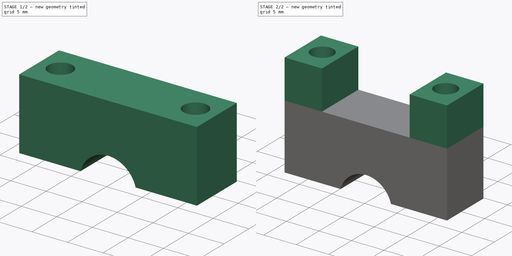
[diagram: build sequence overview — one tinted view per stage of 2, left to right]
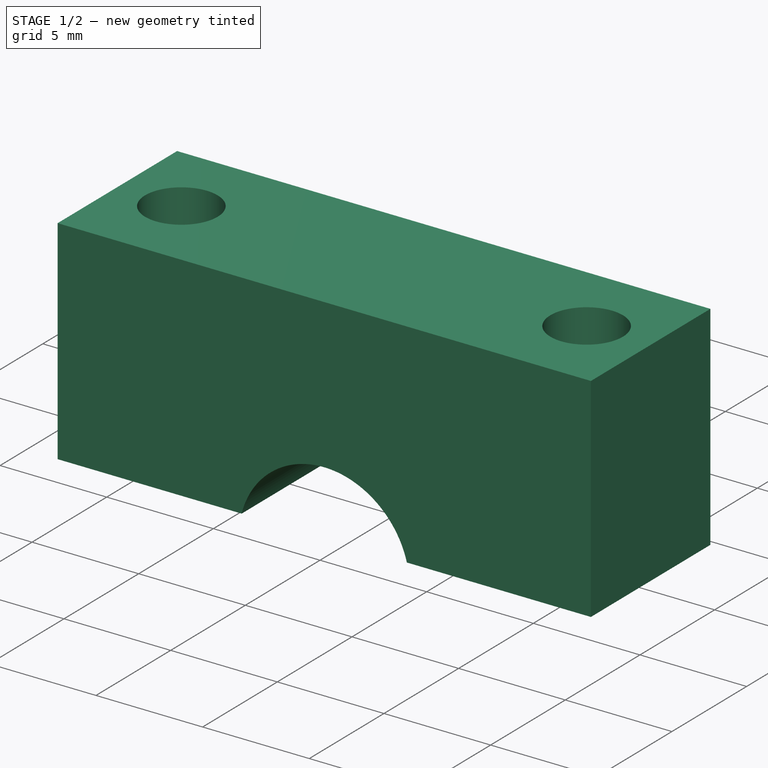
[diagram: stage 1 of 2 — iso view after this stage's code; geometry added in this stage tinted green]
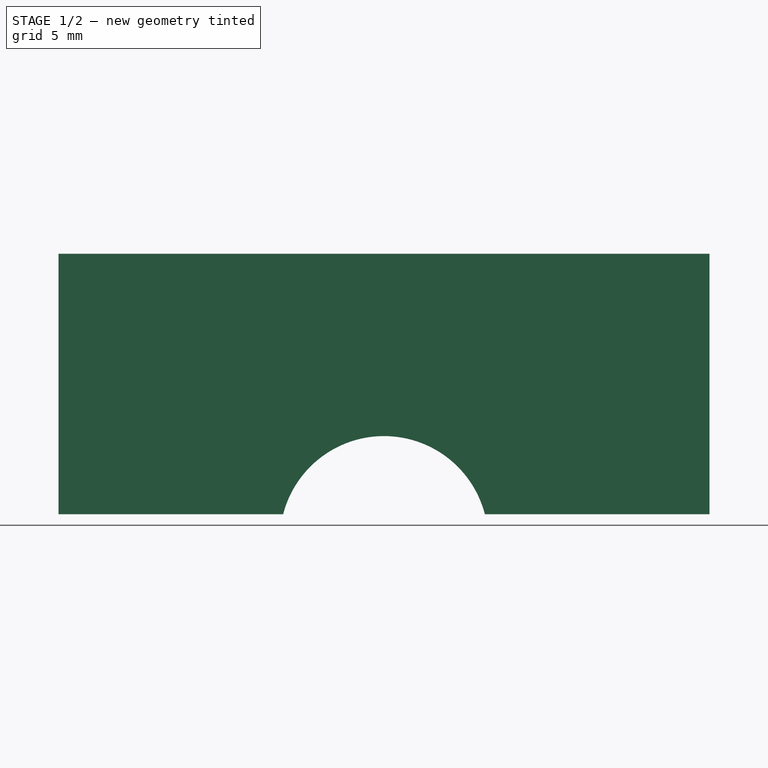
[diagram: stage 1 of 2 — front view after this stage's code; geometry added in this stage tinted green]
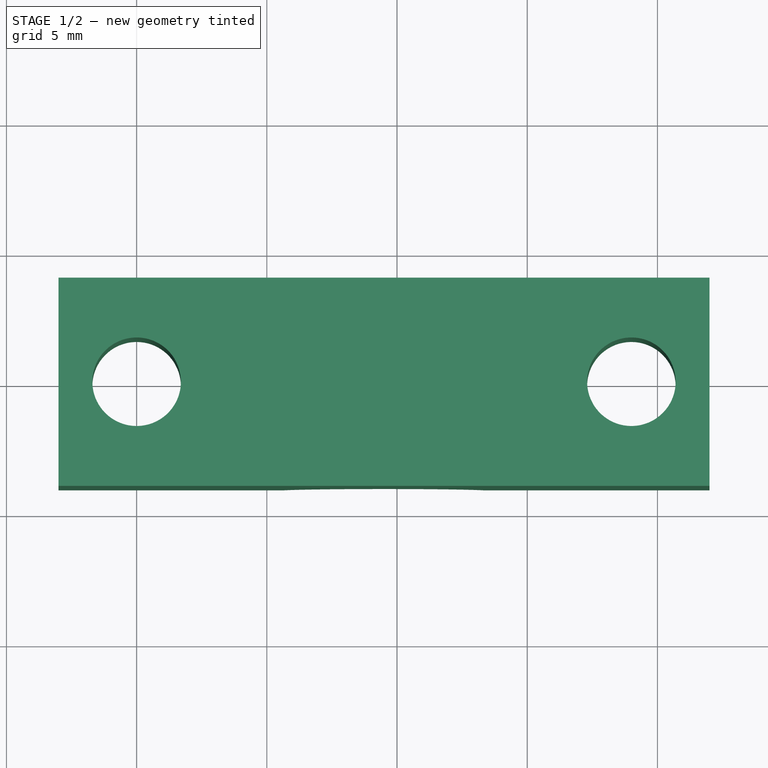
[diagram: stage 1 of 2 — top view after this stage's code; geometry added in this stage tinted green]
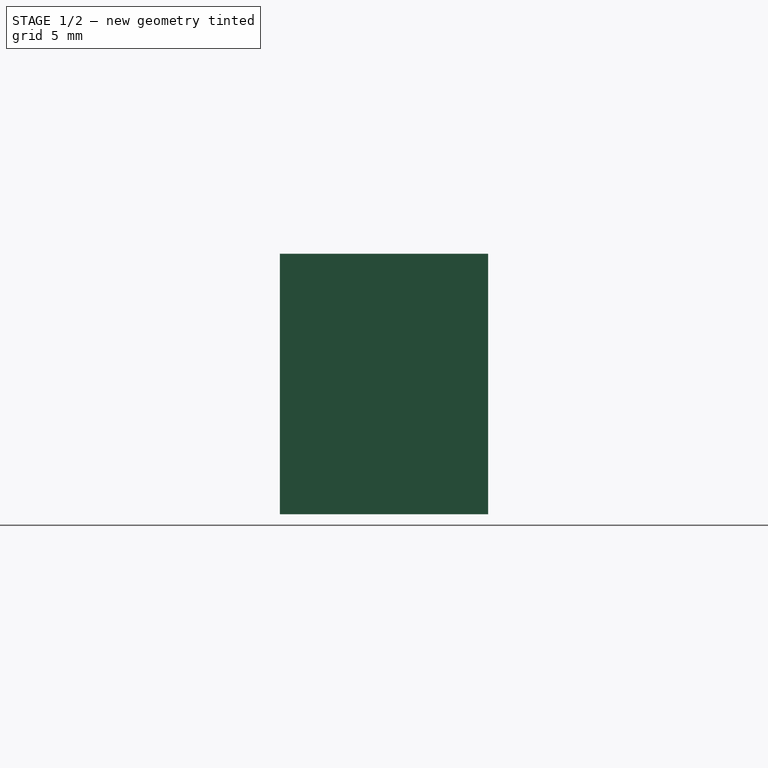
[diagram: stage 1 of 2 — right view after this stage's code; geometry added in this stage tinted green]
FCSTD DOCUMENT  (FreeCAD 0.16RUnknown)
Label: z-endstop1
License: All rights reserved
LicenseURL: http://en.wikipedia.org/wiki/All_rights_reserved
objects: Sketcher::SketchObject×3, PartDesign::Pad×2, PartDesign::Pocket×1
note: 9 computed .brp shape members not serialized (recipe doc carries the construction recipe); baked Part::Feature solids carry a one-line shape summary decoded from their .brp

FEATURE [Sketcher::SketchObject] Sketch
  sketch-geometry (6):
    g0: Circle CenterX=0 CenterY=0 CenterZ=0 NormalX=0 NormalY=0 NormalZ=1 Radius=1.7
    g1: Circle CenterX=19 CenterY=0 CenterZ=0 NormalX=0 NormalY=0 NormalZ=1 Radius=1.7
    g2: LineSegment StartX=-3 StartY=-4 StartZ=0 EndX=22 EndY=-4 EndZ=0
    g3: LineSegment StartX=22 StartY=-4 StartZ=0 EndX=22 EndY=4 EndZ=0
    g4: LineSegment StartX=22 StartY=4 StartZ=0 EndX=-3 EndY=4 EndZ=0
    g5: LineSegment StartX=-3 StartY=4 StartZ=0 EndX=-3 EndY=-4 EndZ=0
  constraints (17):
    c: DistanceX(g0,g1) = 19
    c: Coincident(g-1,g0)
    c: DistanceY(g-1,g1) = 0
    c: Radius(g1) = 1.7
    c: Equal(g1,g0)
    c: Coincident(g2,g3)
    c: Coincident(g3,g4)
    c: Coincident(g4,g5)
    c: Coincident(g5,g2)
    c: Horizontal(g2)
    c: Horizontal(g4)
    c: Vertical(g3)
    c: Vertical(g5)
    c: DistanceX(g2,g-1) = 3
    c: DistanceY(g2,g-1) = 4
    c: DistanceX(g1,g3) = 3
    c: DistanceY(g1,g3) = 4
FEATURE [PartDesign::Pad] Pad
  Length = 10
  Length2 = 100
  Sketch = -> Sketch
  Type = 0
FEATURE [Sketcher::SketchObject] Sketch002
  Placement = pos=(0,-4,0) rot=(1,0,0;1.5708rad)
  Support = -> Pad [Face1]
  sketch-geometry (1):
    g0: Circle CenterX=9.5 CenterY=-1 CenterZ=0 NormalX=0 NormalY=0 NormalZ=1 Radius=4
  constraints (3):
    c: Radius(g0) = 4
    c: DistanceY(g0,g-1) = 1
    c: DistanceX(g-1,g0) = 9.5
FEATURE [PartDesign::Pocket] Pocket
  Length = 5
  Sketch = -> Sketch002
  Type = 1
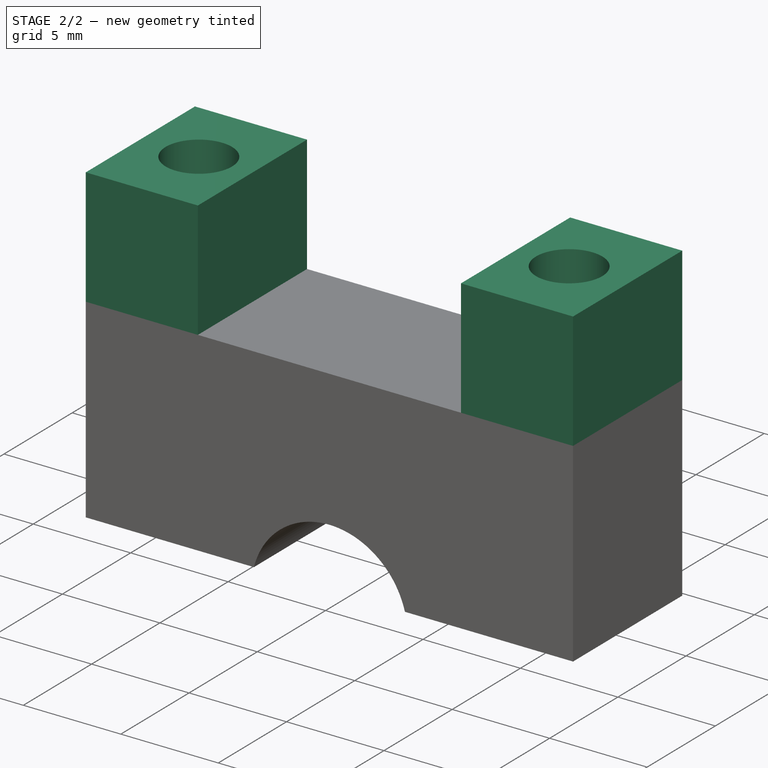
[diagram: stage 2 of 2 — iso view after this stage's code; geometry added in this stage tinted green]
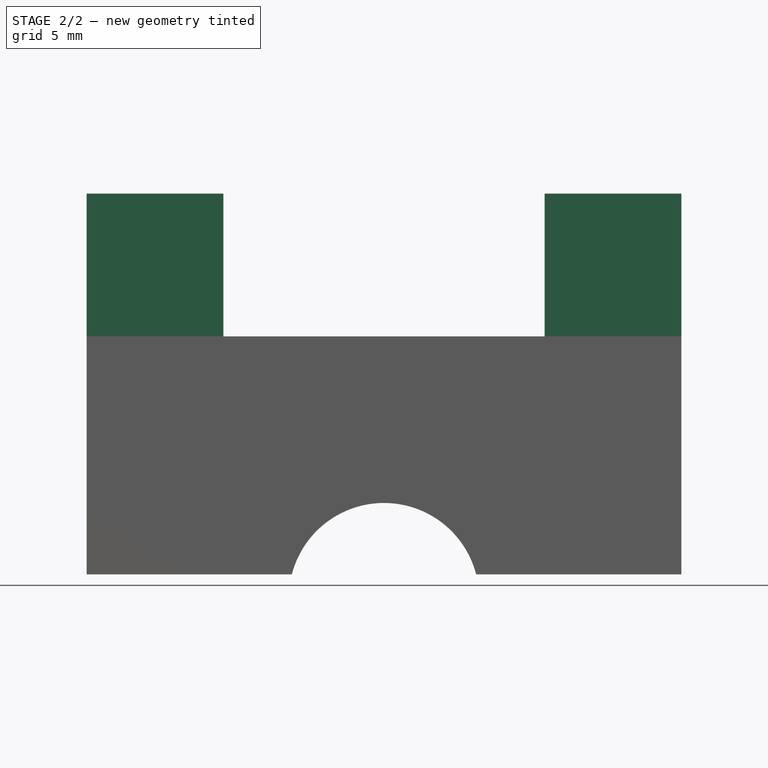
[diagram: stage 2 of 2 — front view after this stage's code; geometry added in this stage tinted green]
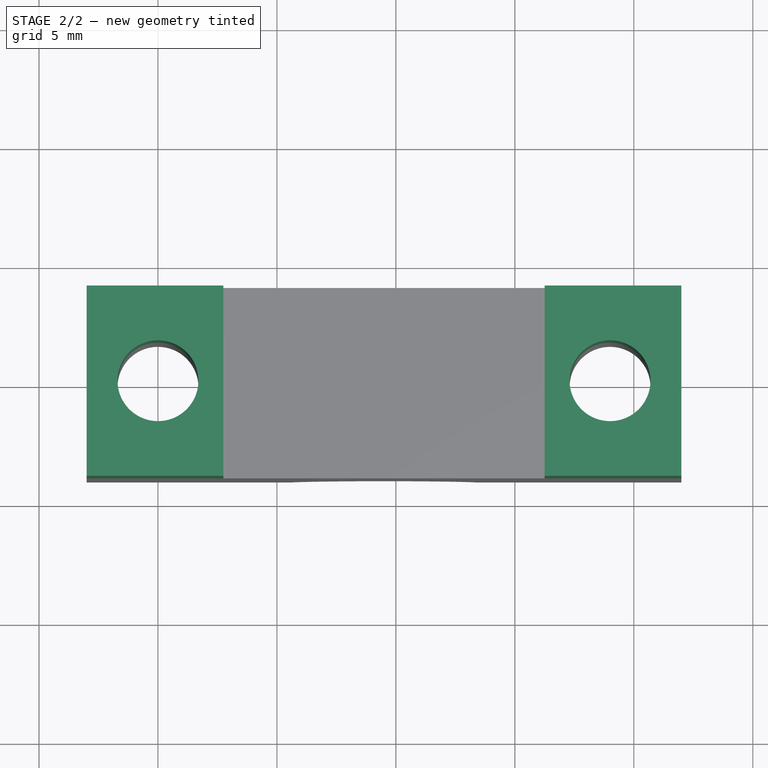
[diagram: stage 2 of 2 — top view after this stage's code; geometry added in this stage tinted green]
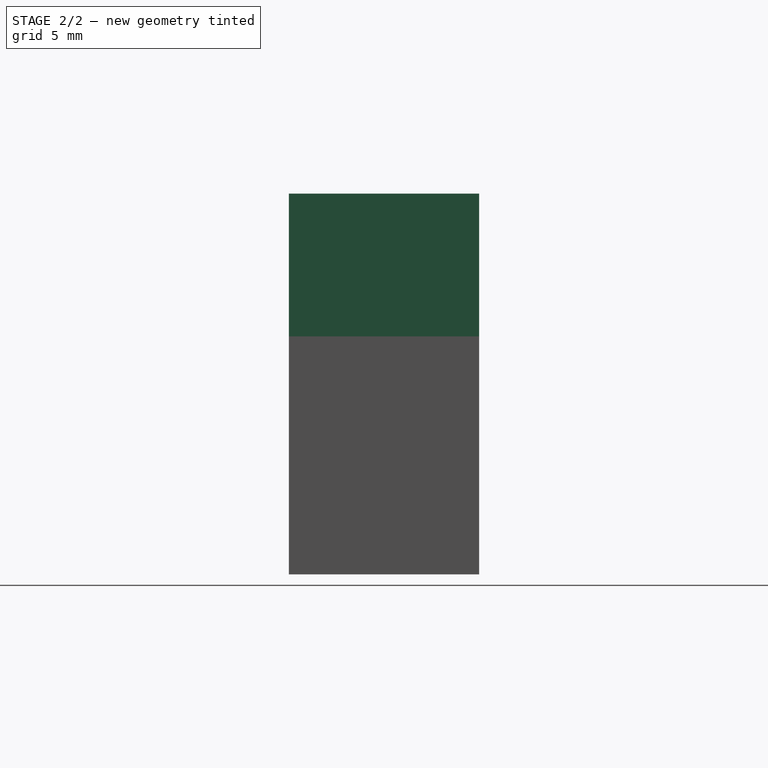
[diagram: stage 2 of 2 — right view after this stage's code; geometry added in this stage tinted green]
FEATURE [Sketcher::SketchObject] Sketch003
  Placement = pos=(0,0,10) rot=(0,0,1;0rad)
  Support = -> Pocket [Face6]
  sketch-geometry (10):
    g0: LineSegment StartX=-3 StartY=4 StartZ=0 EndX=2.75 EndY=4 EndZ=0
    g1: LineSegment StartX=2.75 StartY=4 StartZ=0 EndX=2.75 EndY=-4 EndZ=0
    g2: LineSegment StartX=2.75 StartY=-4 StartZ=0 EndX=-3 EndY=-4 EndZ=0
    g3: LineSegment StartX=-3 StartY=-4 StartZ=0 EndX=-3 EndY=4 EndZ=0
    g4: LineSegment StartX=16.25 StartY=4 StartZ=0 EndX=22 EndY=4 EndZ=0
    g5: LineSegment StartX=22 StartY=4 StartZ=0 EndX=22 EndY=-4 EndZ=0
    g6: LineSegment StartX=22 StartY=-4 StartZ=0 EndX=16.25 EndY=-4 EndZ=0
    g7: LineSegment StartX=16.25 StartY=-4 StartZ=0 EndX=16.25 EndY=4 EndZ=0
    g8: Circle CenterX=0 CenterY=0 CenterZ=0 NormalX=0 NormalY=0 NormalZ=1 Radius=1.7
    g9: Circle CenterX=19 CenterY=0 CenterZ=0 NormalX=0 NormalY=0 NormalZ=1 Radius=1.7
  constraints (29):
    c: Coincident(g0,g1)
    c: Coincident(g1,g2)
    c: Coincident(g2,g3)
    c: Coincident(g3,g0)
    c: Horizontal(g0)
    c: Horizontal(g2)
    c: Vertical(g1)
    c: Vertical(g3)
    c: Coincident(g4,g5)
    c: Coincident(g5,g6)
    c: Coincident(g6,g7)
    c: Coincident(g7,g4)
    c: Horizontal(g4)
    c: Horizontal(g6)
    c: Vertical(g5)
    c: Vertical(g7)
    c: DistanceX(g0,g4) = 13.5
    c: DistanceX(g0,g4) = 25
    c: Equal(g0,g4)
    c: Equal(g5,g3)
    c: DistanceY(g3,g3) = 8
    c: Symmetric(g2,g0,g-1)
    c: Symmetric(g4,g5,g-1)
    c: DistanceX(g2,g-1) = 3
    c: Coincident(g8,g-1)
    c: PointOnObject(g9,g-1)
    c: Equal(g9,g8)
    c: Radius(g8) = 1.7
    c: DistanceX(g-1,g9) = 19
FEATURE [PartDesign::Pad] Pad001
  Length = 6
  Length2 = 100
  Sketch = -> Sketch003
  Type = 0
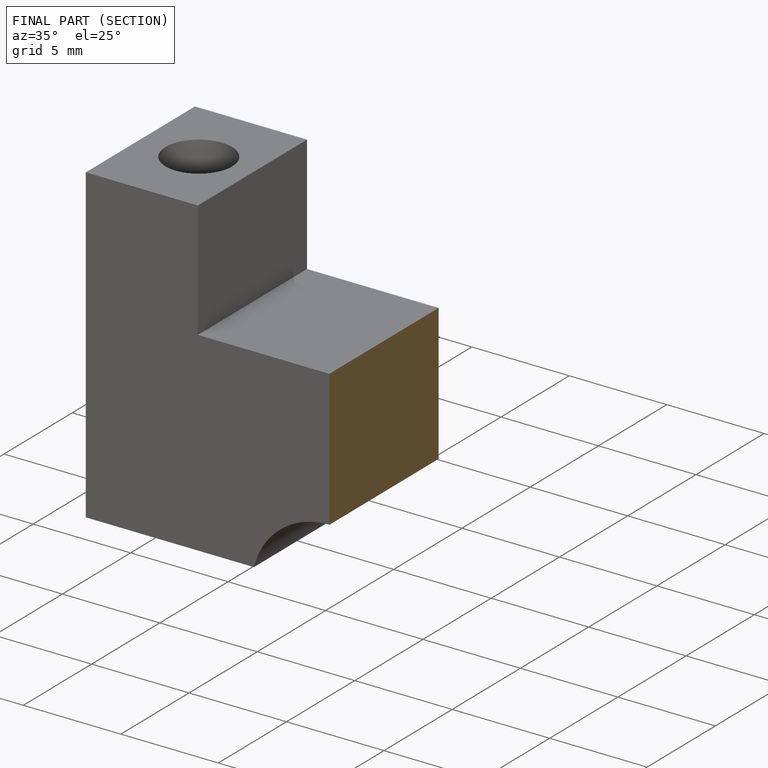
[diagram: finished part — half-section view (interior)]
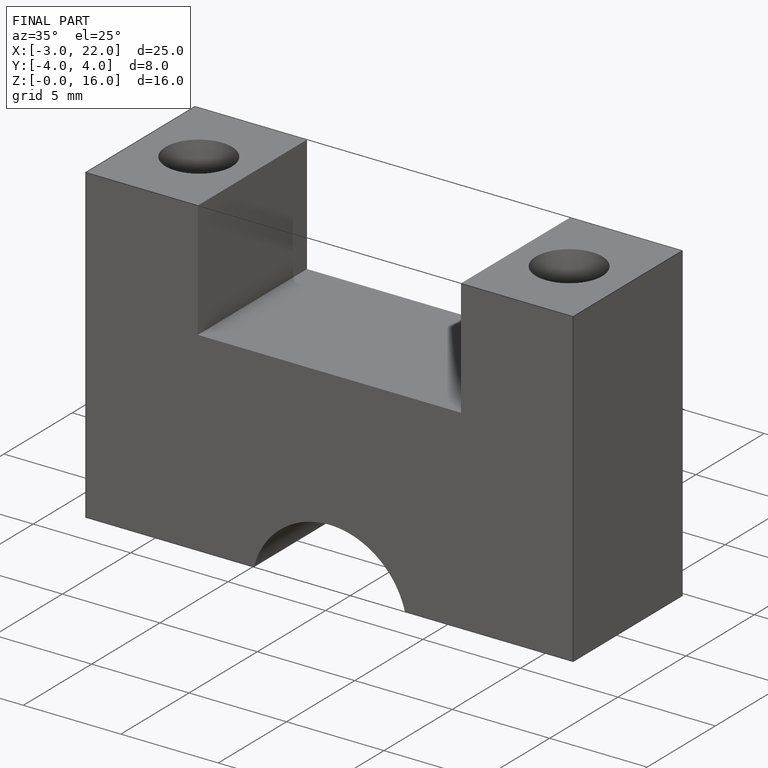
[diagram: finished part — iso view with bounding-box wireframe]
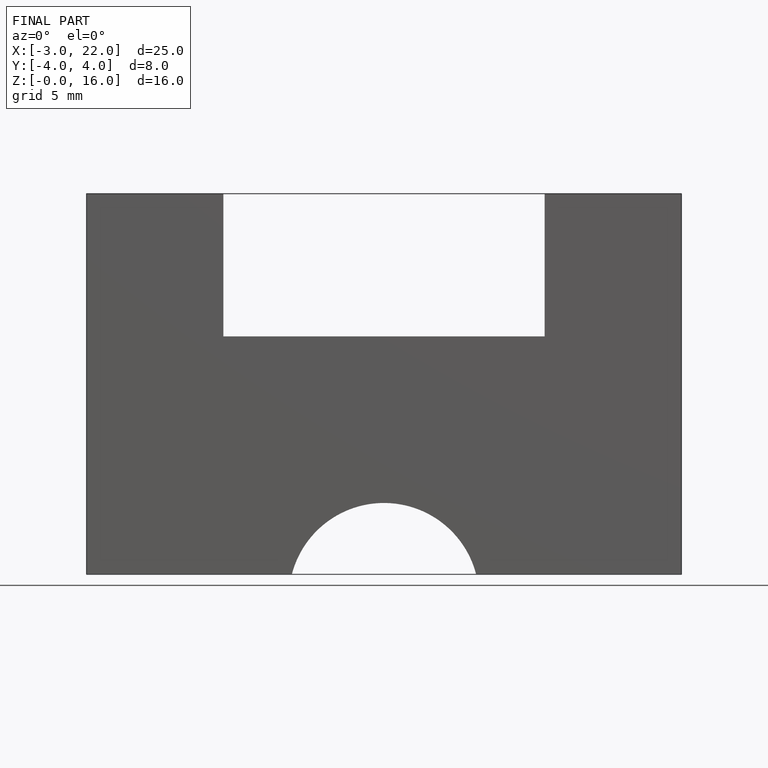
[diagram: finished part — front view with bounding-box wireframe]
